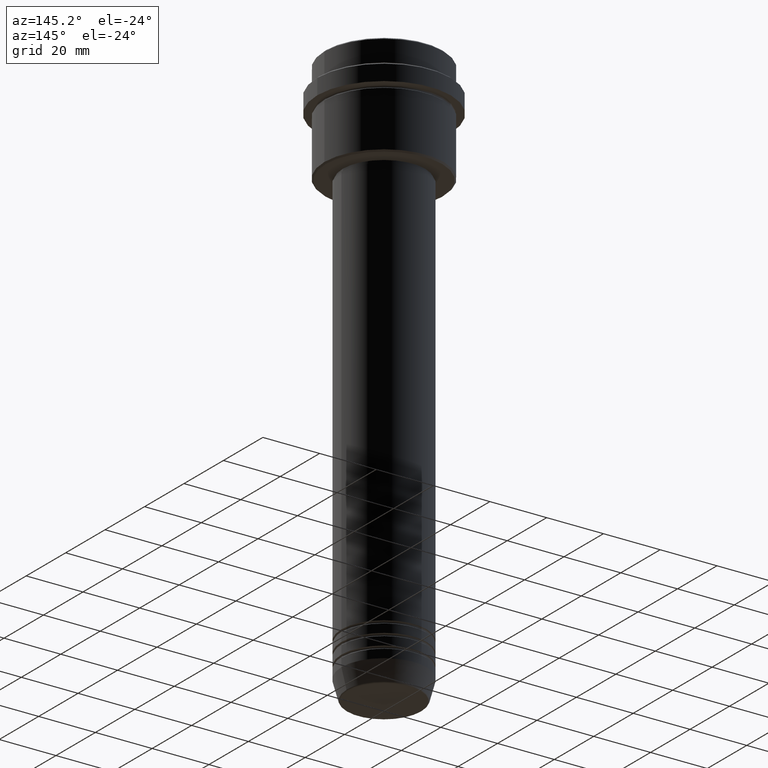
[diagram: clean part render]
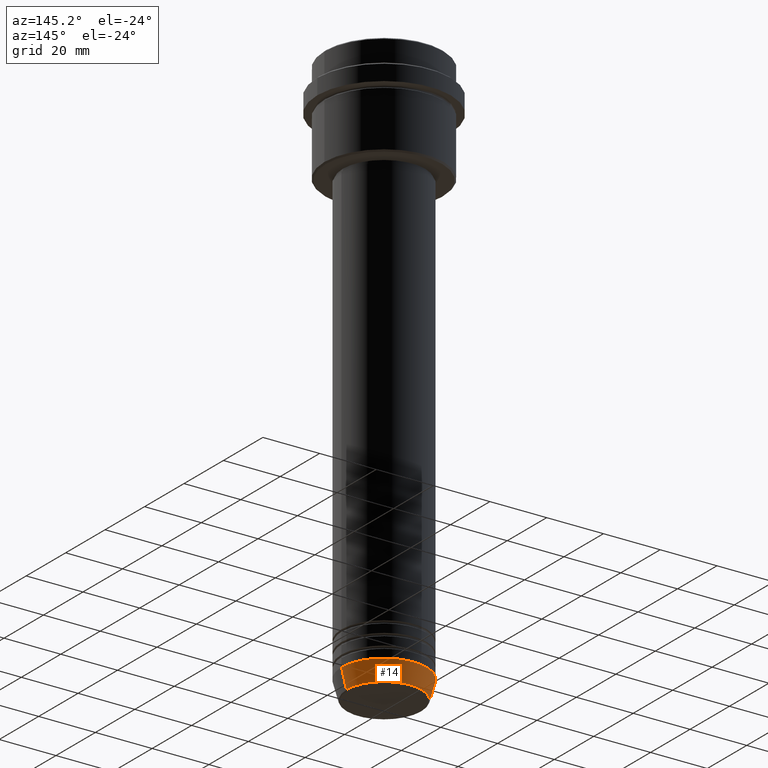
[diagram: same view with one face highlighted and labeled with its STEP entity id]
A machine part, auxiliary view. The second image highlights one B-rep face of the part: STEP entity #14.
In plain terms, the highlighted conical surface has half-angle 15 deg.
Its self-contained STEP definition (entity closure, byte-faithful):
#14 = ADVANCED_FACE ( 'NONE', ( #662 ), #343, .T. ) ;
#25 = CIRCLE ( 'NONE', #53, 15.00000000000000000 ) ;
#53 = AXIS2_PLACEMENT_3D ( 'NONE', #406, #827, #594 ) ;
#88 = EDGE_CURVE ( 'NONE', #1244, #558, #841, .T. ) ;
#137 = ORIENTED_EDGE ( 'NONE', *, *, #1025, .F. ) ;
#195 = DIRECTION ( 'NONE',  ( -0.000000000000000000, -0.000000000000000000, 1.000000000000000000 ) ) ;
#215 = VERTEX_POINT ( 'NONE', #400 ) ;
#243 = DIRECTION ( 'NONE',  ( -0.000000000000000000, -0.000000000000000000, 1.000000000000000000 ) ) ;
#287 = CARTESIAN_POINT ( 'NONE',  ( 15.00000000000000000, 0.000000000000000000, -194.0000000000000000 ) ) ;
#320 = CARTESIAN_POINT ( 'NONE',  ( 15.00000000000000000, 0.000000000000000000, -194.0000000000000000 ) ) ;
#339 = CARTESIAN_POINT ( 'NONE',  ( 0.000000000000000000, 0.000000000000000000, -194.0000000000000000 ) ) ;
#343 = CONICAL_SURFACE ( 'NONE', #1279, 15.00000000000000000, 0.2617993877991500740 ) ;
#346 = CARTESIAN_POINT ( 'NONE',  ( -15.00000000000000000, 1.836970198721029589E-15, -194.0000000000000000 ) ) ;
#400 = CARTESIAN_POINT ( 'NONE',  ( -15.00000000000000000, 1.836970198721029589E-15, -194.0000000000000000 ) ) ;
#406 = CARTESIAN_POINT ( 'NONE',  ( 0.000000000000000000, 0.000000000000000000, -194.0000000000000000 ) ) ;
#558 = VERTEX_POINT ( 'NONE', #845 ) ;
#566 = EDGE_LOOP ( 'NONE', ( #939, #833, #1400, #137 ) ) ;
#569 = DIRECTION ( 'NONE',  ( -0.2588190451025213501, 3.169619151431772337E-17, 0.9659258262890680902 ) ) ;
#574 = EDGE_CURVE ( 'NONE', #820, #215, #25, .T. ) ;
#594 = DIRECTION ( 'NONE',  ( 1.000000000000000000, 0.000000000000000000, 0.000000000000000000 ) ) ;
#599 = AXIS2_PLACEMENT_3D ( 'NONE', #1170, #195, #1308 ) ;
#646 = CARTESIAN_POINT ( 'NONE',  ( 13.22365507213719482, 0.000000000000000000, -200.6294095225512706 ) ) ;
#662 = FACE_OUTER_BOUND ( 'NONE', #566, .T. ) ;
#717 = LINE ( 'NONE', #287, #789 ) ;
#789 = VECTOR ( 'NONE', #836, 1000.000000000000000 ) ;
#820 = VERTEX_POINT ( 'NONE', #320 ) ;
#827 = DIRECTION ( 'NONE',  ( -0.000000000000000000, -0.000000000000000000, 1.000000000000000000 ) ) ;
#833 = ORIENTED_EDGE ( 'NONE', *, *, #974, .T. ) ;
#836 = DIRECTION ( 'NONE',  ( 0.2588190451025213501, 0.000000000000000000, 0.9659258262890680902 ) ) ;
#841 = CIRCLE ( 'NONE', #599, 13.22365507213719482 ) ;
#845 = CARTESIAN_POINT ( 'NONE',  ( -13.22365507213719660, 1.728200442216588780E-15, -200.6294095225512706 ) ) ;
#898 = LINE ( 'NONE', #346, #1068 ) ;
#939 = ORIENTED_EDGE ( 'NONE', *, *, #88, .T. ) ;
#974 = EDGE_CURVE ( 'NONE', #558, #215, #898, .T. ) ;
#1025 = EDGE_CURVE ( 'NONE', #1244, #820, #717, .T. ) ;
#1068 = VECTOR ( 'NONE', #569, 1000.000000000000000 ) ;
#1126 = DIRECTION ( 'NONE',  ( 1.000000000000000000, 0.000000000000000000, 0.000000000000000000 ) ) ;
#1170 = CARTESIAN_POINT ( 'NONE',  ( 0.000000000000000000, 0.000000000000000000, -200.6294095225512706 ) ) ;
#1244 = VERTEX_POINT ( 'NONE', #646 ) ;
#1279 = AXIS2_PLACEMENT_3D ( 'NONE', #339, #243, #1126 ) ;
#1308 = DIRECTION ( 'NONE',  ( 1.000000000000000000, 0.000000000000000000, 0.000000000000000000 ) ) ;
#1400 = ORIENTED_EDGE ( 'NONE', *, *, #574, .F. ) ;